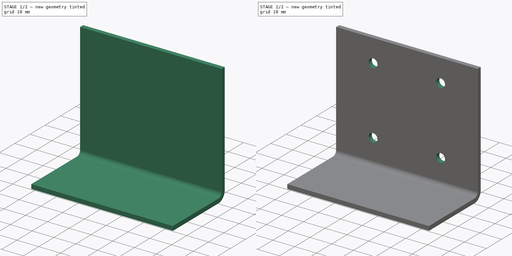
[diagram: build sequence overview — one tinted view per stage of 2, left to right]
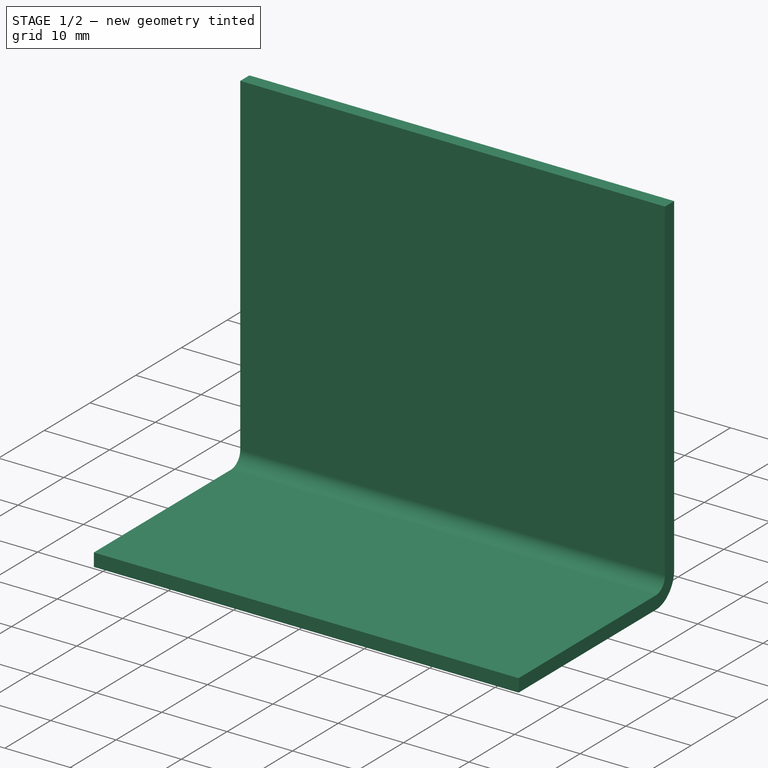
[diagram: stage 1 of 2 — iso view after this stage's code; geometry added in this stage tinted green]
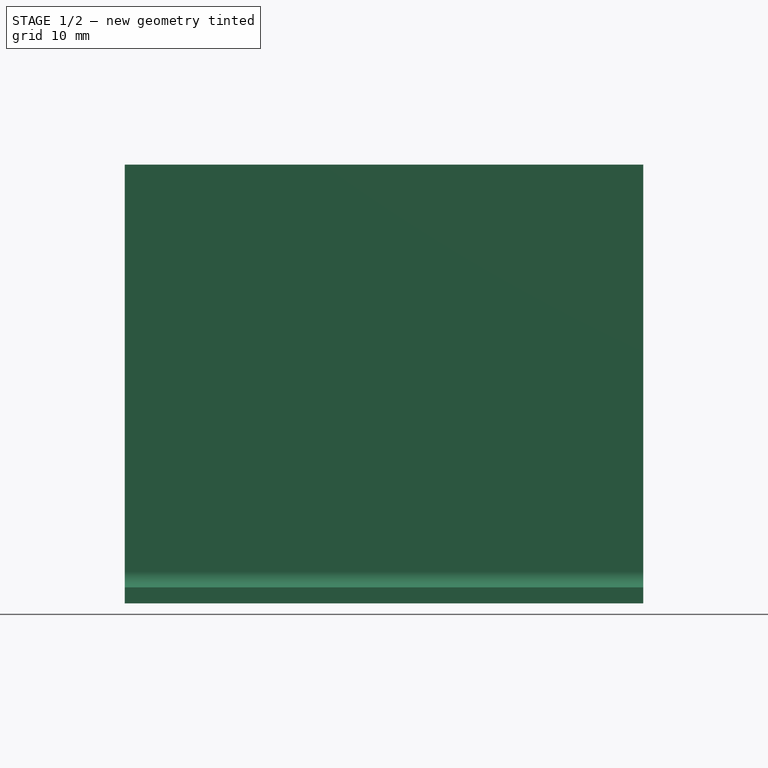
[diagram: stage 1 of 2 — front view after this stage's code; geometry added in this stage tinted green]
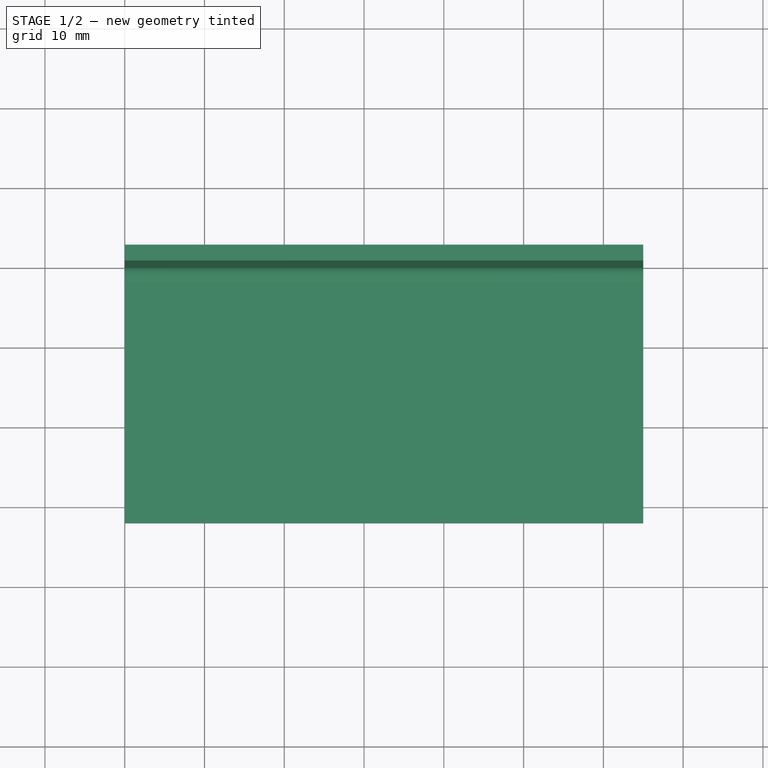
[diagram: stage 1 of 2 — top view after this stage's code; geometry added in this stage tinted green]
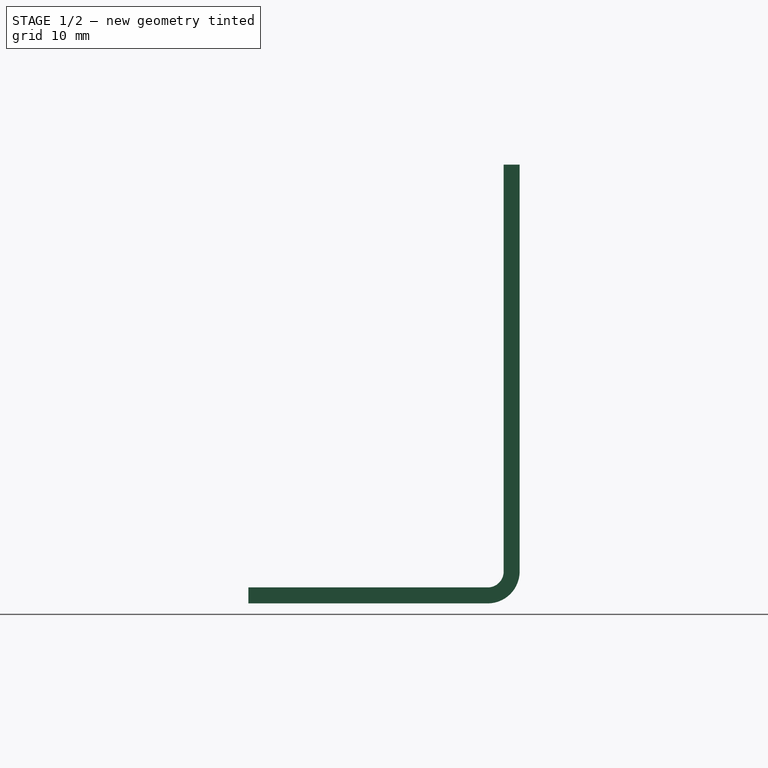
[diagram: stage 1 of 2 — right view after this stage's code; geometry added in this stage tinted green]
FCSTD DOCUMENT  (FreeCAD 0.15R4671 (Git))
Label: support moteur
License: All rights reserved
LicenseURL: http://en.wikipedia.org/wiki/All_rights_reserved
objects: Sketcher::SketchObject×2, PartDesign::Pad×1, PartDesign::Pocket×1
note: 6 computed .brp shape members not serialized (recipe doc carries the construction recipe); baked Part::Feature solids carry a one-line shape summary decoded from their .brp

FEATURE [Sketcher::SketchObject] Sketch001
  Placement = pos=(0,0,0) rot=(0.57735,0.57735,0.57735;2.0944rad)
  sketch-geometry (8):
    g0: LineSegment StartX=0 StartY=53 StartZ=0 EndX=0 EndY=2 EndZ=0
    g1: LineSegment StartX=-2 StartY=0 StartZ=0 EndX=-32 EndY=0 EndZ=0
    g2: LineSegment StartX=-32 StartY=0 StartZ=0 EndX=-32 EndY=-2 EndZ=0
    g3: LineSegment StartX=-32 StartY=-2 StartZ=0 EndX=-2 EndY=-2 EndZ=0
    g4: LineSegment StartX=2 StartY=2 StartZ=0 EndX=2 EndY=53 EndZ=0
    g5: LineSegment StartX=2 StartY=53 StartZ=0 EndX=0 EndY=53 EndZ=0
    g6: ArcOfCircle CenterX=-2 CenterY=2 CenterZ=0 NormalX=0 NormalY=0 NormalZ=1 Radius=2 StartAngle=4.71239 EndAngle=6.28319
    g7: ArcOfCircle CenterX=-2 CenterY=2 CenterZ=0 NormalX=0 NormalY=0 NormalZ=1 Radius=4 StartAngle=4.71239 EndAngle=6.28319
  constraints (22):
    c: Vertical(g0)
    c: Horizontal(g1)
    c: Coincident(g1,g2)
    c: Vertical(g2)
    c: Coincident(g2,g3)
    c: Horizontal(g3)
    c: Vertical(g4)
    c: Coincident(g4,g5)
    c: Coincident(g5,g0)
    c: Horizontal(g5)
    c: Equal(g5,g2)
    c: Tangent(g1,g6) = 1.5708
    c: Tangent(g0,g6) = 1.5708
    c: Radius(g6) = 2
    c: Tangent(g4,g7) = -1.5708
    c: Tangent(g3,g7) = -1.5708
    c: Radius(g7) = 4
    c: DistanceX(g2,g4) = 34
    c: Distance(g5) = 2
    c: DistanceY(g1,g0) = 53
    c: PointOnObject(g-1,g0)
    c: PointOnObject(g-1,g1)
FEATURE [PartDesign::Pad] Pad
  Length = 65
  Length2 = 100
  Placement = pos=(0,0,0) rot=(0.57735,0.57735,0.57735;2.0944rad)
  Sketch = -> Sketch001
  Type = 0
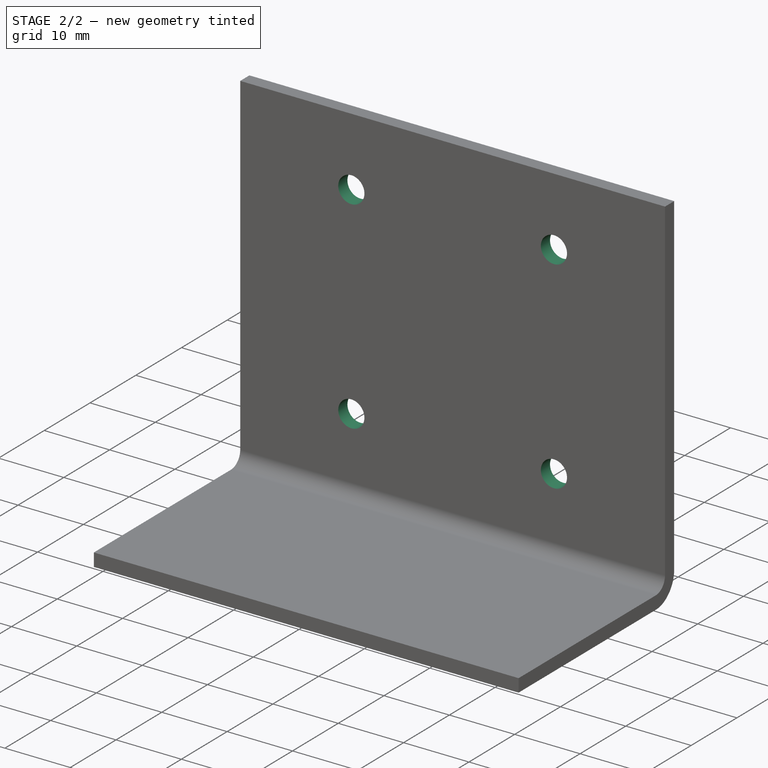
[diagram: stage 2 of 2 — iso view after this stage's code; geometry added in this stage tinted green]
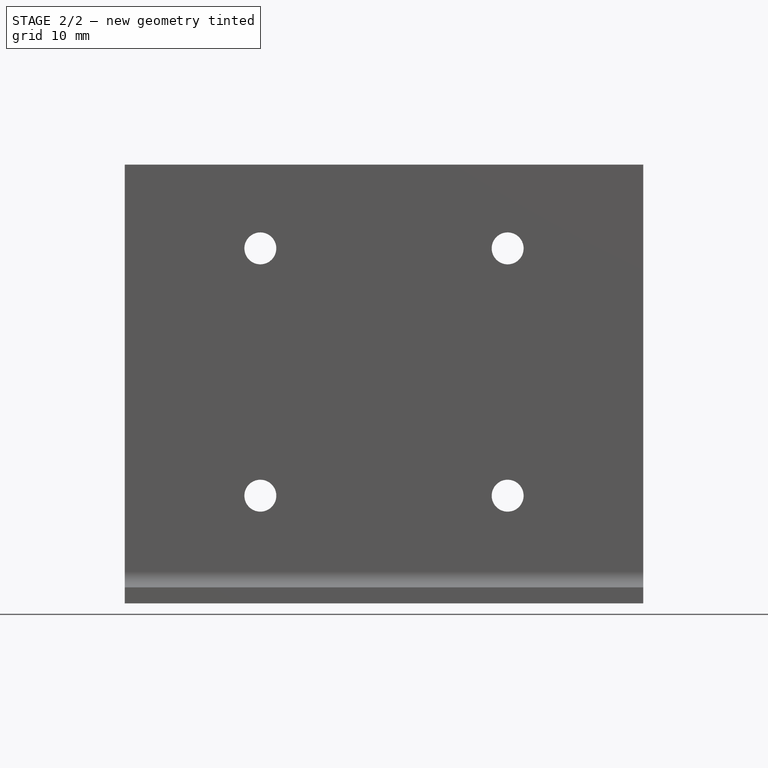
[diagram: stage 2 of 2 — front view after this stage's code; geometry added in this stage tinted green]
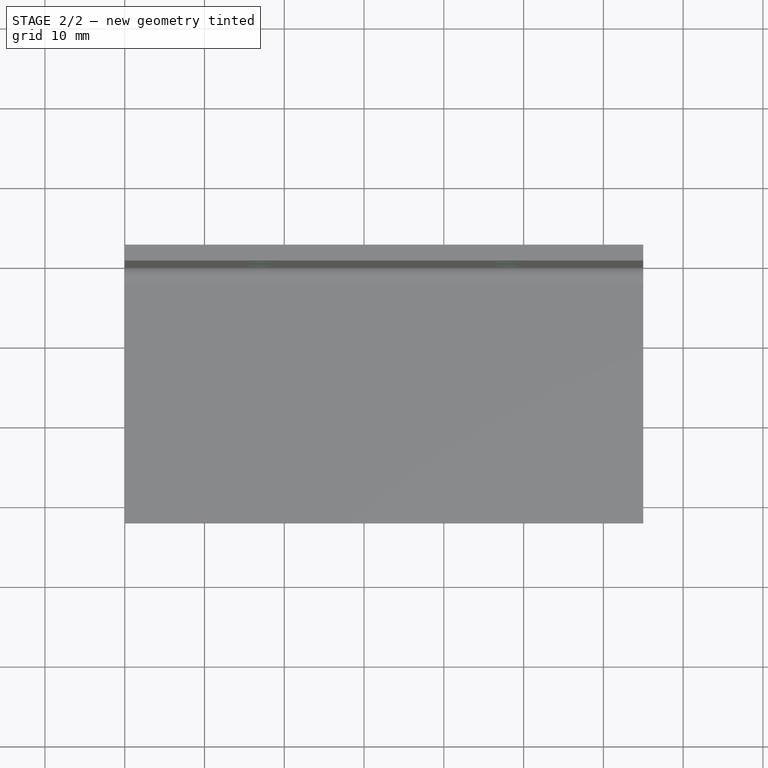
[diagram: stage 2 of 2 — top view after this stage's code; geometry added in this stage tinted green]
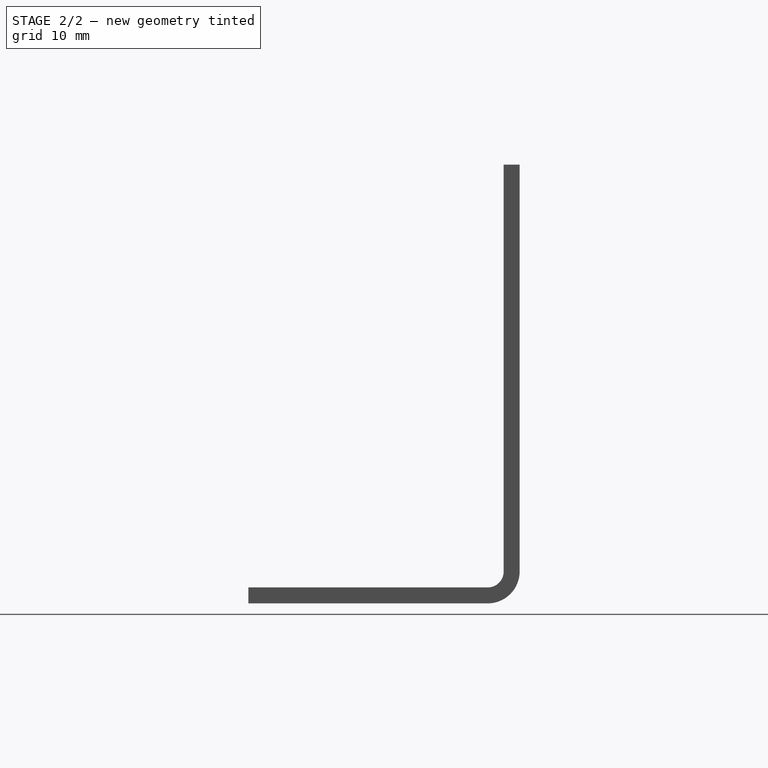
[diagram: stage 2 of 2 — right view after this stage's code; geometry added in this stage tinted green]
FEATURE [Sketcher::SketchObject] Sketch
  Placement = pos=(0,0,0) rot=(0.57735,0.57735,-0.57735;2.0944rad)
  Support = -> Pad [Face7]
  sketch-geometry (8):
    g0: LineSegment [constr] StartX=-42.5 StartY=48 StartZ=0 EndX=-11.5 EndY=48 EndZ=0
    g1: LineSegment [constr] StartX=-11.5 StartY=48 StartZ=0 EndX=-11.5 EndY=17 EndZ=0
    g2: LineSegment [constr] StartX=-11.5 StartY=17 StartZ=0 EndX=-42.5 EndY=17 EndZ=0
    g3: LineSegment [constr] StartX=-42.5 StartY=17 StartZ=0 EndX=-42.5 EndY=48 EndZ=0
    g4: Circle CenterX=-42.5 CenterY=48 CenterZ=0 NormalX=0 NormalY=0 NormalZ=1 Radius=2
    g5: Circle CenterX=-11.5 CenterY=48 CenterZ=0 NormalX=0 NormalY=0 NormalZ=1 Radius=2
    g6: Circle CenterX=-42.5 CenterY=17 CenterZ=0 NormalX=0 NormalY=0 NormalZ=1 Radius=2
    g7: Circle CenterX=-11.5 CenterY=17 CenterZ=0 NormalX=0 NormalY=0 NormalZ=1 Radius=2
  constraints (20):
    c: Coincident(g0,g1)
    c: Coincident(g1,g2)
    c: Coincident(g2,g3)
    c: Coincident(g3,g0)
    c: Horizontal(g0)
    c: Horizontal(g2)
    c: Vertical(g1)
    c: Vertical(g3)
    c: Coincident(g4,g0)
    c: Coincident(g5,g0)
    c: Coincident(g6,g2)
    c: Coincident(g7,g1)
    c: Equal(g4,g6)
    c: Equal(g6,g7)
    c: Equal(g7,g5)
    c: Radius(g4) = 2
    c: DistanceX(g-1,g0) = -42.5
    c: Distance(g0) = 31
    c: DistanceY(g-1,g2) = 17
    c: Distance(g3) = 31
FEATURE [PartDesign::Pocket] Pocket
  Length = 5
  Placement = pos=(0,0,0) rot=(0.57735,0.57735,0.57735;2.0944rad)
  Sketch = -> Sketch
  Type = 1
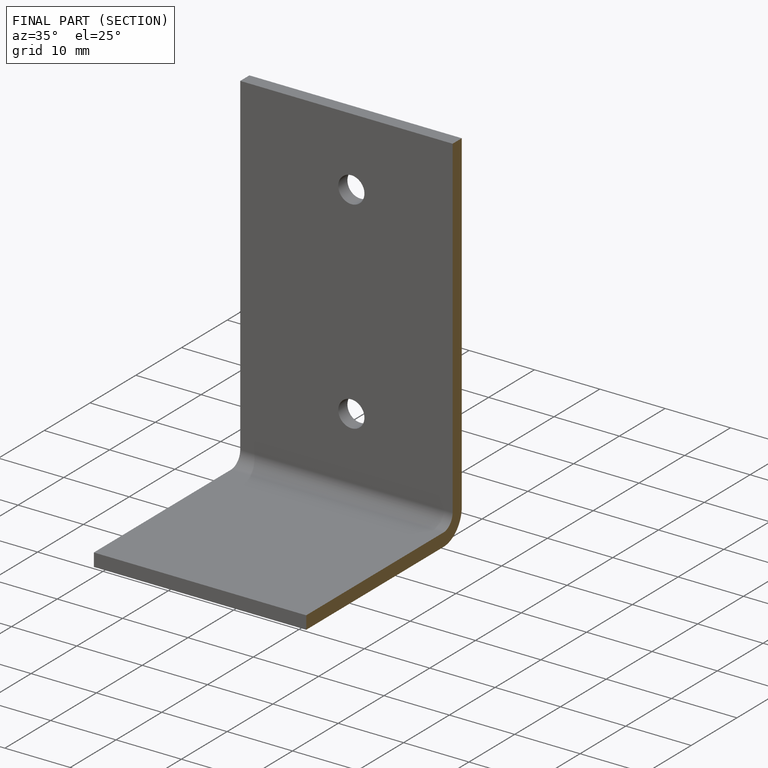
[diagram: finished part — half-section view (interior)]
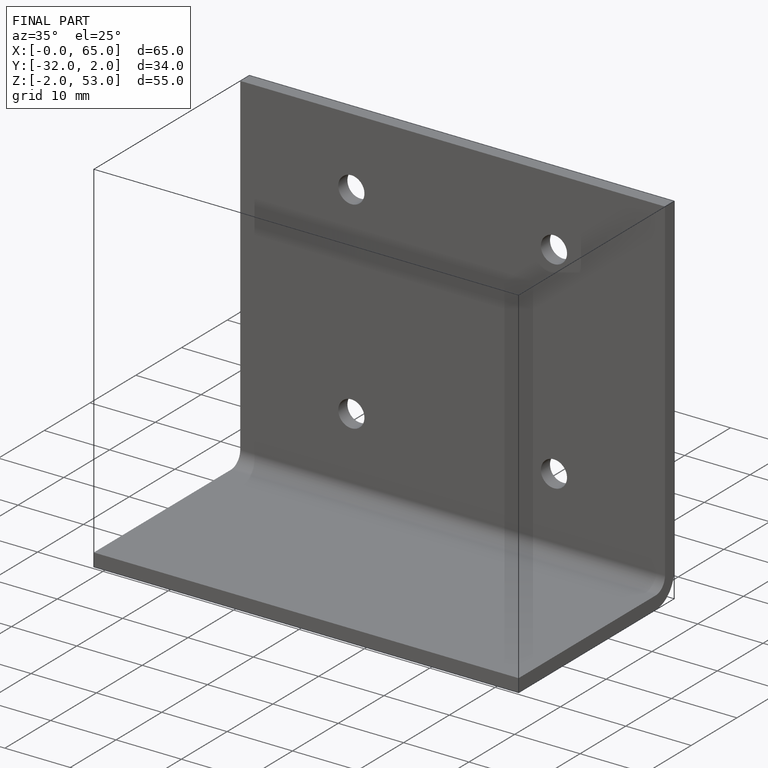
[diagram: finished part — iso view with bounding-box wireframe]
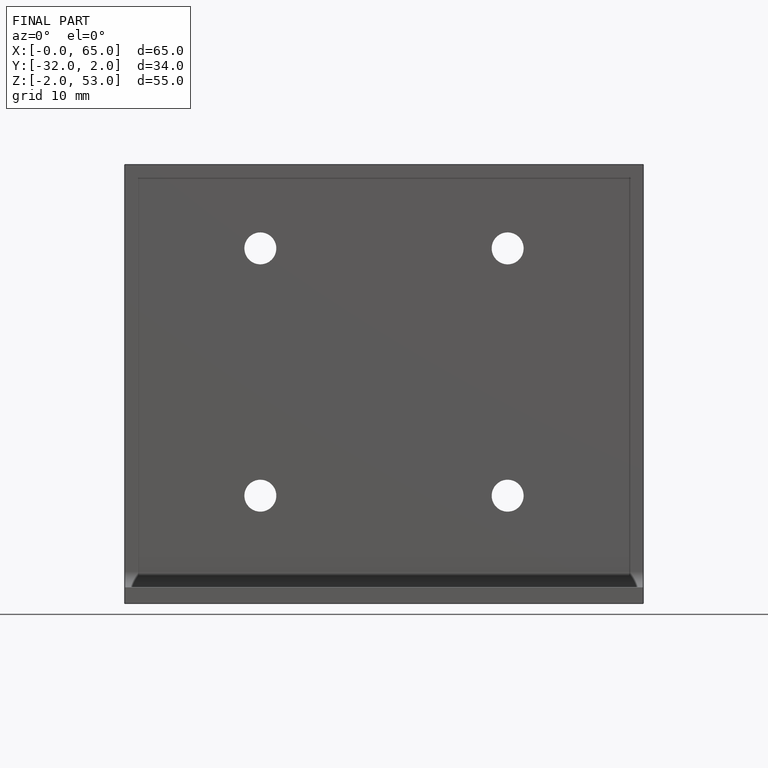
[diagram: finished part — front view with bounding-box wireframe]
